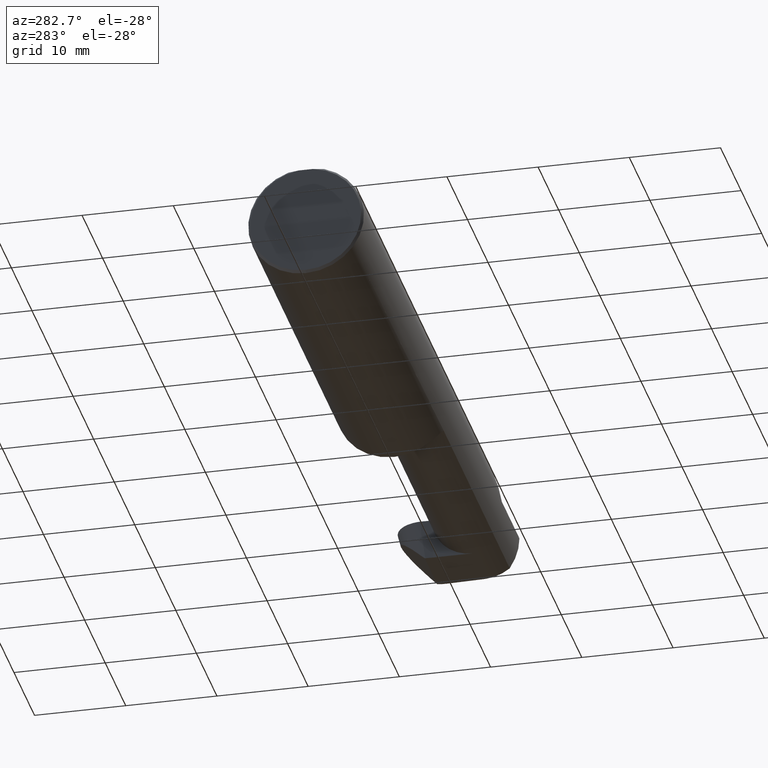
[diagram: clean part render]
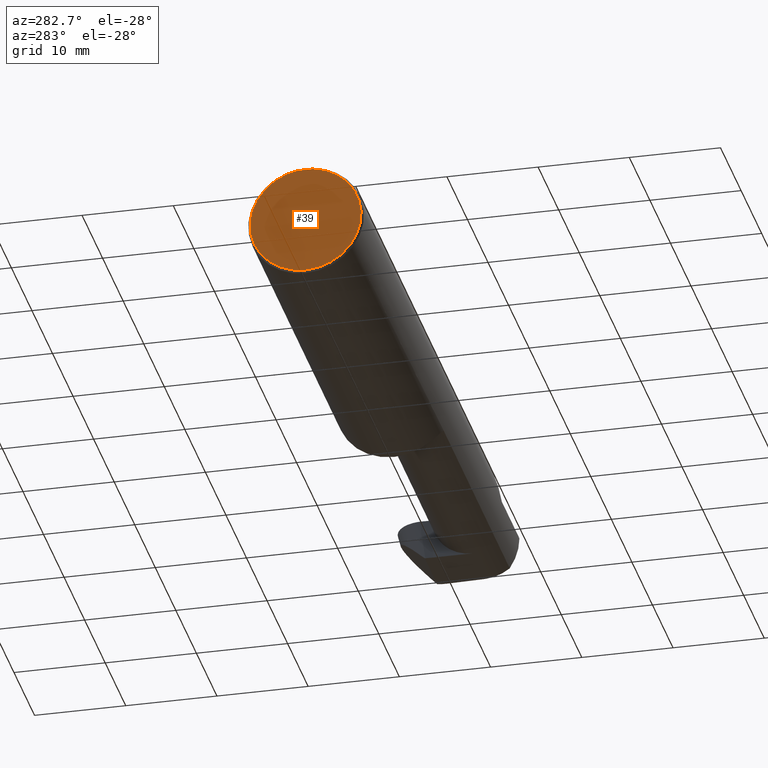
[diagram: same view with one face highlighted and labeled with its STEP entity id]
A machine part, auxiliary view. The second image highlights one B-rep face of the part: STEP entity #39.
In plain terms, the highlighted planar face has unit normal (1, 0, 0).
Its self-contained STEP definition (entity closure, byte-faithful):
#39 = ADVANCED_FACE ( 'NONE', ( #728 ), #107, .F. ) ;
#48 = EDGE_CURVE ( 'NONE', #319, #581, #407, .T. ) ;
#58 = ORIENTED_EDGE ( 'NONE', *, *, #48, .T. ) ;
#80 = EDGE_CURVE ( 'NONE', #688, #319, #265, .T. ) ;
#107 = PLANE ( 'NONE',  #690 ) ;
#197 = CARTESIAN_POINT ( 'NONE',  ( 0.000000000000000000, 0.03090954545120574992, 0.2378499999999998671 ) ) ;
#204 = CARTESIAN_POINT ( 'NONE',  ( 0.000000000000000000, 0.000000000000000000, 0.000000000000000000 ) ) ;
#265 = LINE ( 'NONE', #442, #547 ) ;
#319 = VERTEX_POINT ( 'NONE', #197 ) ;
#324 = DIRECTION ( 'NONE',  ( 0.000000000000000000, 0.000000000000000000, -1.000000000000000000 ) ) ;
#328 = DIRECTION ( 'NONE',  ( 0.000000000000000000, 0.000000000000000000, -1.000000000000000000 ) ) ;
#367 = EDGE_LOOP ( 'NONE', ( #530, #58, #467 ) ) ;
#372 = CARTESIAN_POINT ( 'NONE',  ( 0.000000000000000000, 0.000000000000000000, -0.2398500000000001742 ) ) ;
#407 = CIRCLE ( 'NONE', #666, 0.2398500000000001742 ) ;
#421 = CIRCLE ( 'NONE', #702, 0.2398500000000001742 ) ;
#442 = CARTESIAN_POINT ( 'NONE',  ( 0.000000000000000000, 0.2498499999999998500, 0.2378499999999998671 ) ) ;
#443 = EDGE_CURVE ( 'NONE', #581, #688, #421, .T. ) ;
#448 = DIRECTION ( 'NONE',  ( -1.000000000000000000, -0.000000000000000000, -0.000000000000000000 ) ) ;
#454 = CARTESIAN_POINT ( 'NONE',  ( 0.000000000000000000, 0.000000000000000000, 0.000000000000000000 ) ) ;
#460 = DIRECTION ( 'NONE',  ( -1.000000000000000000, -0.000000000000000000, -0.000000000000000000 ) ) ;
#467 = ORIENTED_EDGE ( 'NONE', *, *, #443, .T. ) ;
#508 = CARTESIAN_POINT ( 'NONE',  ( 0.000000000000000000, -0.03090954545120560767, 0.2378499999999998671 ) ) ;
#530 = ORIENTED_EDGE ( 'NONE', *, *, #80, .T. ) ;
#547 = VECTOR ( 'NONE', #665, 39.37007874015748143 ) ;
#564 = CARTESIAN_POINT ( 'NONE',  ( 0.000000000000000000, 0.000000000000000000, 0.000000000000000000 ) ) ;
#581 = VERTEX_POINT ( 'NONE', #372 ) ;
#665 = DIRECTION ( 'NONE',  ( -0.000000000000000000, 1.000000000000000000, -0.000000000000000000 ) ) ;
#666 = AXIS2_PLACEMENT_3D ( 'NONE', #454, #460, #674 ) ;
#674 = DIRECTION ( 'NONE',  ( 0.000000000000000000, 0.000000000000000000, -1.000000000000000000 ) ) ;
#688 = VERTEX_POINT ( 'NONE', #508 ) ;
#690 = AXIS2_PLACEMENT_3D ( 'NONE', #564, #741, #328 ) ;
#702 = AXIS2_PLACEMENT_3D ( 'NONE', #204, #448, #324 ) ;
#728 = FACE_OUTER_BOUND ( 'NONE', #367, .T. ) ;
#741 = DIRECTION ( 'NONE',  ( 1.000000000000000000, 0.000000000000000000, 0.000000000000000000 ) ) ;